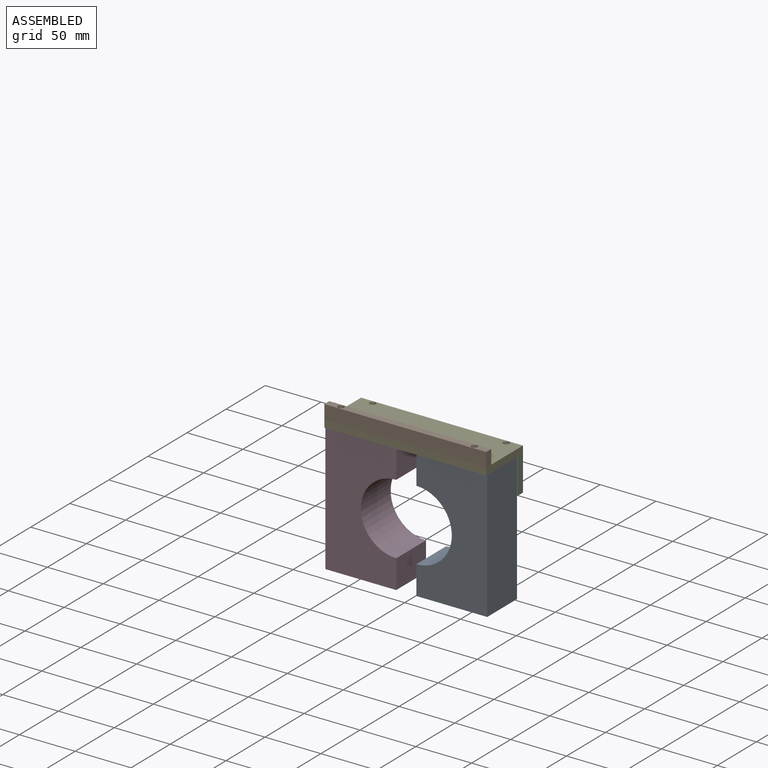
[diagram: assembled view]
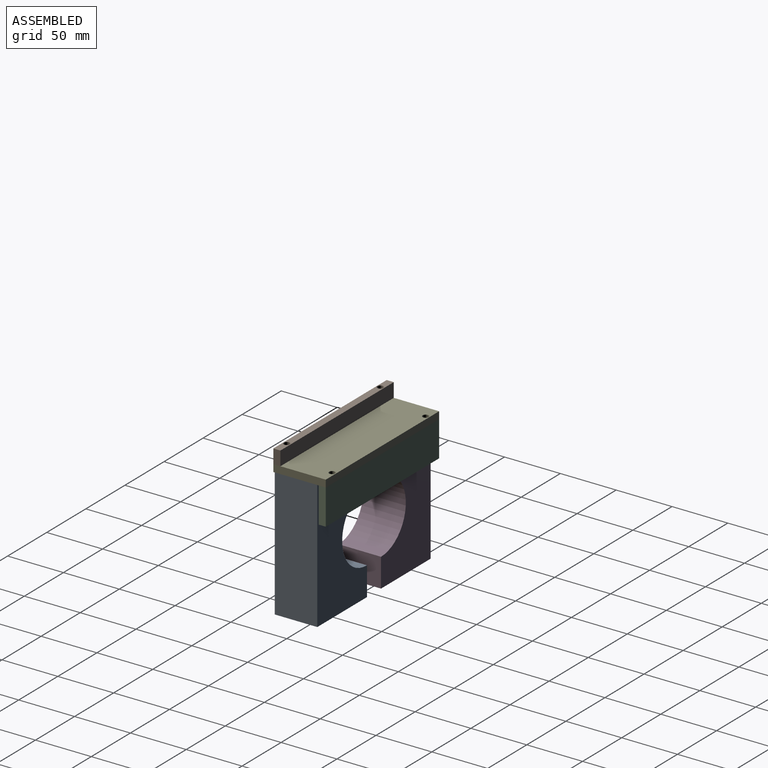
[diagram: assembled view, second angle]
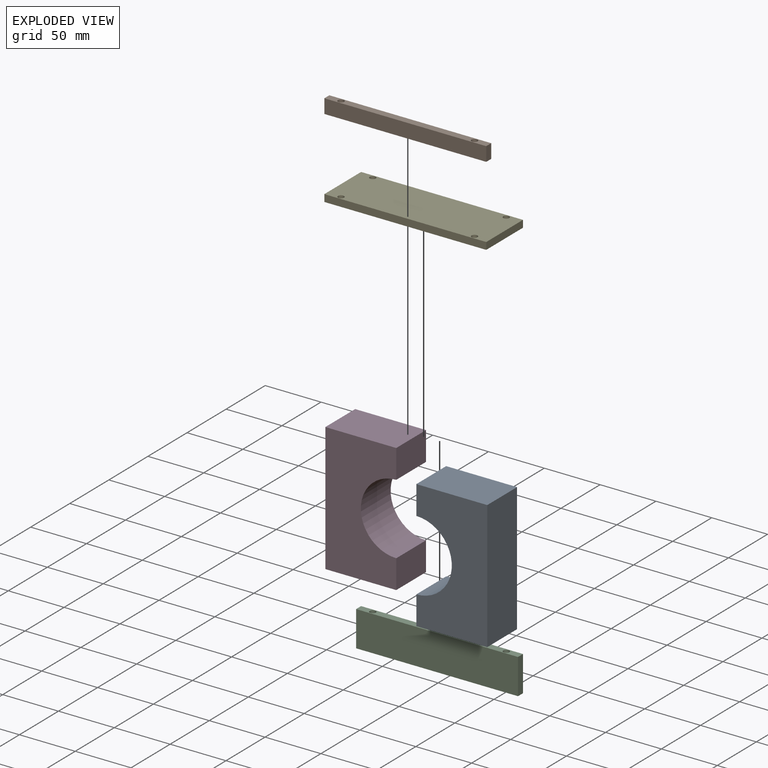
[diagram: exploded view]
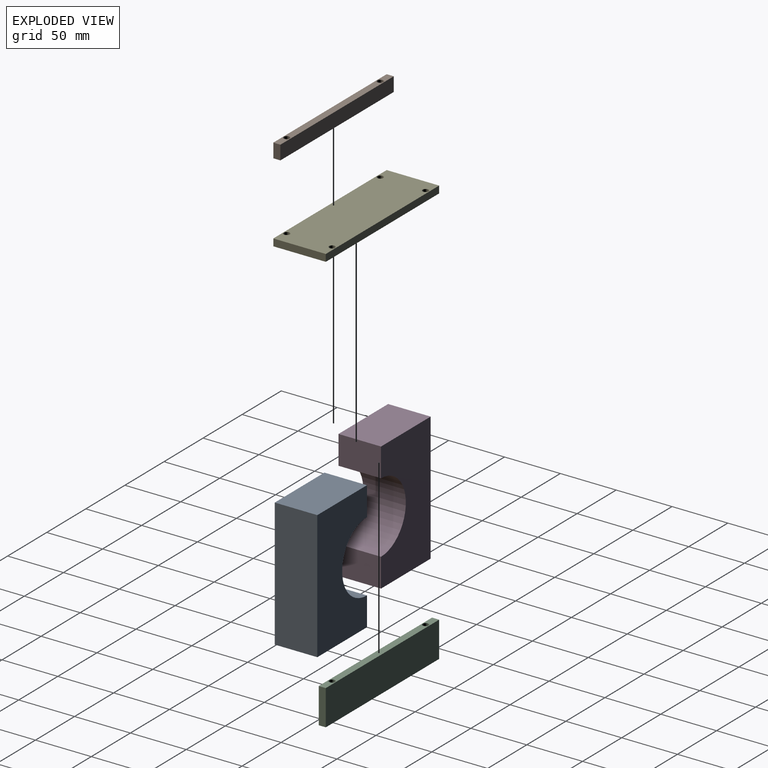
[diagram: exploded view, second angle]
ASSEMBLY  parts=5 mates=6
PART A: 8 faces, bbox 63.5x38.1x115 mm
  f0: plane 38.1x25.75mm, normal (-1,0,0), area 981.1mm2, adj f4,f5,f6,f7
  f1: plane 38.1x25.75mm, normal (-1,0,0), area 981.1mm2, adj f2,f5,f6,f7
  f2: plane 63.5x38.1mm, normal (0,0,-1), area 2419.3mm2, adj f1,f3,f5,f6
  f3: plane 115x38.1mm, normal (1,0,0), area 4381.5mm2, adj f2,f4,f5,f6
  f4: plane 63.5x38.1mm, normal (0,0,1), area 2419.3mm2, adj f0,f3,f5,f6
  f5: plane 115x63.5mm, normal (0,-1,0), area 5719mm2, adj f0,f1,f2,f3,f4,f7
  f6: plane 115x63.5mm, normal (0,1,0), area 5719mm2, adj f0,f1,f2,f3,f4,f7
  f7: cylinder r=31.75mm len=63.5mm, axis (0,-1,0), area 3800.3mm2, adj f0,f1,f5,f6
PART B: 8 faces, bbox 145x6.4x12.7 mm
  f0: plane 145x6.35mm, normal (0,0,1), area 876.1mm2, adj f1,f3,f4,f5,f6,f7
  f1: plane 12.7x6.35mm, normal (-1,0,0), area 80.6mm2, adj f0,f2,f4,f5
  f2: plane 145x6.35mm, normal (0,0,-1), area 876.1mm2, adj f1,f3,f4,f5,f6,f7
  f3: plane 12.7x6.35mm, normal (1,0,0), area 80.6mm2, adj f0,f2,f4,f5
  f4: plane 145x12.7mm, normal (0,-1,0), area 1841.5mm2, adj f0,f1,f2,f3
  f5: plane 145x12.7mm, normal (0,1,0), area 1841.5mm2, adj f0,f1,f2,f3
  f6: cylinder r=2.67mm len=12.7mm, axis (0,0,1), area 212.8mm2, adj f0,f2
  f7: cylinder r=2.67mm len=12.7mm, axis (0,0,1), area 212.8mm2, adj f0,f2
PART C: 10 faces, bbox 145x6.4x31.8 mm
  f0: plane 145x6.35mm, normal (0,0,1), area 876.1mm2, adj f1,f3,f4,f5,f6,f8
  f1: plane 31.75x6.35mm, normal (-1,0,0), area 201.6mm2, adj f0,f2,f4,f5
  f2: plane 145x6.35mm, normal (0,0,-1), area 920.7mm2, adj f1,f3,f4,f5
  f3: plane 31.75x6.35mm, normal (1,0,0), area 201.6mm2, adj f0,f2,f4,f5
  f4: plane 145x31.75mm, normal (0,-1,0), area 4603.7mm2, adj f0,f1,f2,f3
  f5: plane 145x31.75mm, normal (0,1,0), area 4603.7mm2, adj f0,f1,f2,f3
  f6: cylinder r=2.67mm len=12.7mm, axis (0,0,1), area 212.8mm2, adj f0,f7
  f7: cone r=0mm half-angle=59deg, axis (0,0,1), area 26.1mm2, adj f6
  f8: cylinder r=2.67mm len=12.7mm, axis (0,0,1), area 212.8mm2, adj f0,f9
  f9: cone r=0mm half-angle=59deg, axis (0,0,1), area 26.1mm2, adj f8
PART D: 8 faces, bbox 63.5x38.1x115 mm
  f0: plane 38.1x25.75mm, normal (1,0,0), area 981.1mm2, adj f1,f5,f6,f7
  f1: plane 63.5x38.1mm, normal (0,0,1), area 2419.3mm2, adj f0,f2,f5,f6
  f2: plane 115x38.1mm, normal (-1,0,0), area 4381.5mm2, adj f1,f3,f5,f6
  f3: plane 63.5x38.1mm, normal (0,0,-1), area 2419.3mm2, adj f2,f4,f5,f6
  f4: plane 38.1x25.75mm, normal (1,0,0), area 981.1mm2, adj f3,f5,f6,f7
  f5: plane 115x63.5mm, normal (0,-1,0), area 5719mm2, adj f0,f1,f2,f3,f4,f7
  f6: plane 115x63.5mm, normal (0,1,0), area 5719mm2, adj f0,f1,f2,f3,f4,f7
  f7: cylinder r=31.75mm len=63.5mm, axis (0,-1,0), area 3800.3mm2, adj f0,f4,f5,f6
PART E: 10 faces, bbox 145x6.4x47 mm
  f0: plane 145x6.35mm, normal (0,0,1), area 920.7mm2, adj f1,f3,f4,f5
  f1: plane 46.99x6.35mm, normal (-1,0,0), area 298.4mm2, adj f0,f2,f4,f5
  f2: plane 145x6.35mm, normal (0,0,-1), area 920.7mm2, adj f1,f3,f4,f5
  f3: plane 46.99x6.35mm, normal (1,0,0), area 298.4mm2, adj f0,f2,f4,f5
  f4: plane 145x46.99mm, normal (0,-1,0), area 6724.2mm2, adj f0,f1,f2,f3,f6,f7,f8,f9
  f5: plane 145x46.99mm, normal (0,1,0), area 6724.2mm2, adj f0,f1,f2,f3,f6,f7,f8,f9
  f6: cylinder r=2.67mm len=6.35mm, axis (0,-1,0), area 106.4mm2, adj f4,f5
  f7: cylinder r=2.67mm len=6.35mm, axis (0,-1,0), area 106.4mm2, adj f4,f5
  f8: cylinder r=2.67mm len=6.35mm, axis (0,-1,0), area 106.4mm2, adj f4,f5
  f9: cylinder r=2.67mm len=6.35mm, axis (0,-1,0), area 106.4mm2, adj f4,f5
PLACE A t=(-129.92,8.01,-263.14)mm
PLACE B rot(axis=(1,0,0),180deg) t=(-129.92,-31.39,-129.09)mm
PLACE C t=(-129.92,15.6,-179.89)mm
PLACE D t=(-129.92,8.01,-263.14)mm
PLACE E rot(axis=(-1,0,0),90deg) t=(-129.92,-31.39,-148.14)mm
MATE cylindrical B.f6 <-> E.f8  axis (0,0,-1) through (-117.22,-28.21,-141.79)mm
MATE planar E.f5 <-> A.f4  axis (0,0,-1) through (-57.42,-7.89,-148.14)mm
MATE cylindrical E.f7 <-> C.f8  axis (0,0,1) through (2.38,12.43,-141.79)mm
MATE planar D.f2 <-> E.f1  axis (-1,0,0) through (-129.92,-11.04,-148.14)mm
MATE planar C.f0 <-> E.f5  axis (0,0,1) through (-57.42,12.43,-148.14)mm
MATE cylindrical E.f8 <-> B.f6  axis (0,0,1) through (-117.22,-28.21,-141.79)mm
